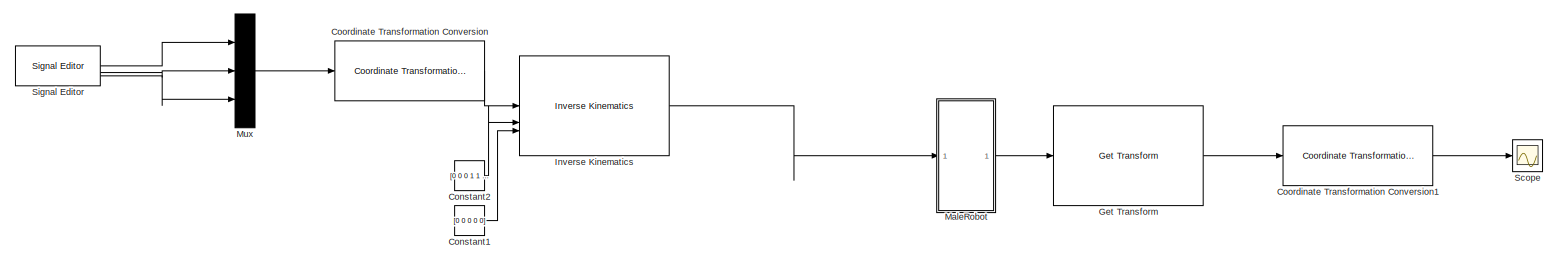
[diagram: root canvas - part 1/1, most of the canvas]
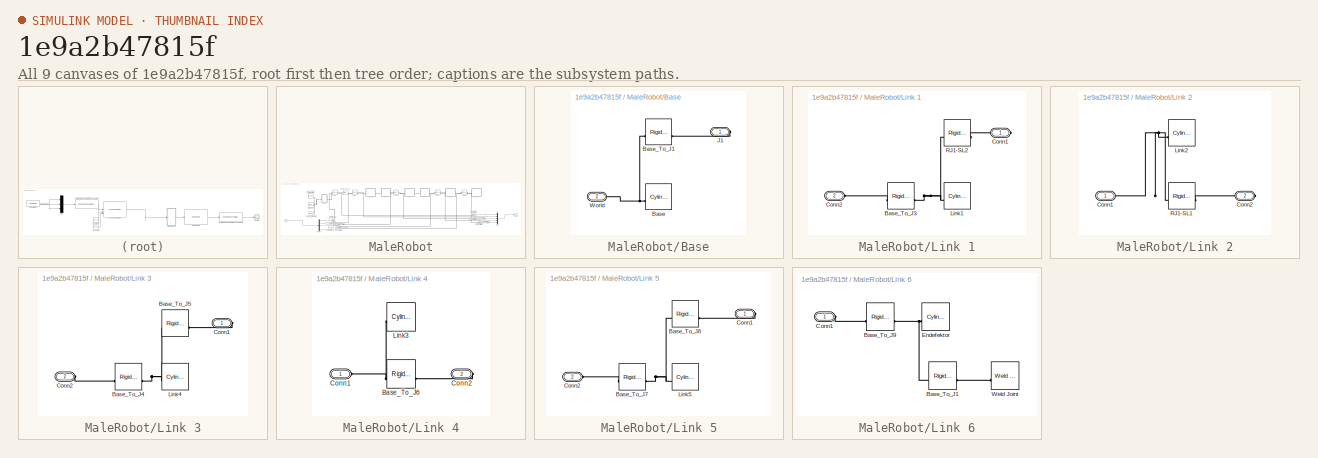
[diagram: thumbnail index - all 9 canvases of the model, root first then tree order]
MODEL slx_1e9a2b47815f
KIND model
CONFIG AbsTol = auto
CONFIG EnableMultiTasking = off
CONFIG FixedStep = auto
CONFIG MaxStep = auto
CONFIG MinStep = auto
CONFIG RelTol = 1e-3
CONFIG SampleTimeConstraint = Unconstrained
CONFIG SolverName = VariableStepAuto
CONFIG StartTime = 0.0
CONFIG StopTime = 12.0
BLOCK [Constant] Constant1
  Value = [0 0 0 0 0]
BLOCK [Constant] Constant2
  Value = [0 0 0 1 1 1]
BLOCK [Reference] Coordinate Transformation Conversion  REF=robotcorelib/Coordinate Transformation Conversion
  LibrarySourceBlock = navlib/Utilities/Coordinate Transformation Conversion
  SourceBlock = robotcorelib/Coordinate Transformation Conversion
  SourceType = robotics.slcore.internal.block.CoordinateTransformationConversion
BLOCK [Reference] Coordinate Transformation Conversion1  REF=robotcorelib/Coordinate Transformation Conversion
  SourceBlock = robotcorelib/Coordinate Transformation Conversion
  SourceType = robotics.slcore.internal.block.CoordinateTransformationConversion
BLOCK [Reference] Get Transform  REF=robotmaniplib/Get Transform
  SourceBlock = robotmaniplib/Get Transform
  SourceType = Get Transform
BLOCK [Reference] Inverse Kinematics  REF=robotmaniplib/Inverse Kinematics
  SourceBlock = robotmaniplib/Inverse Kinematics
  SourceType = Inverse Kinematics
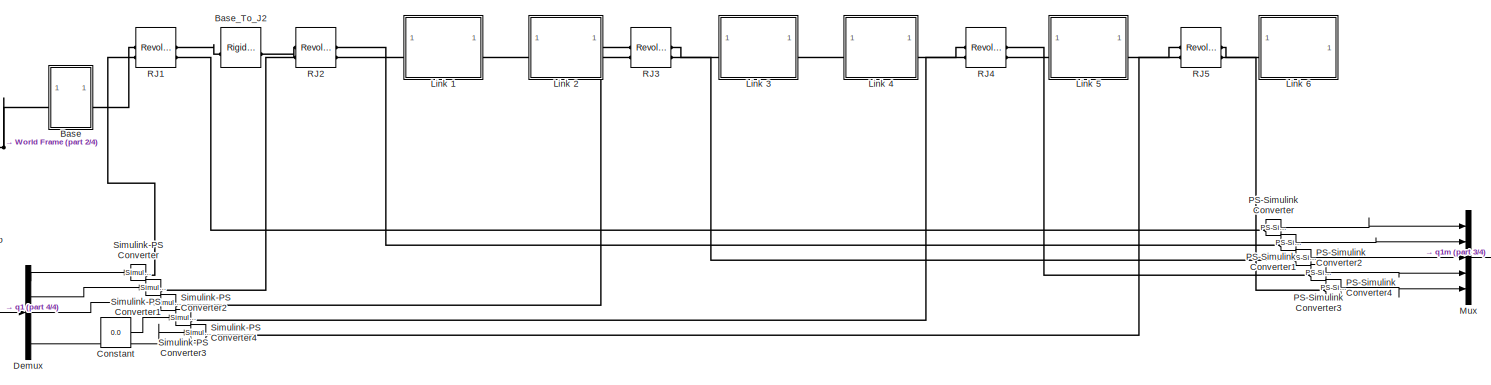
[diagram: MaleRobot - part 1/4, most of the canvas]
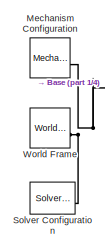
[diagram: MaleRobot - part 2/4, middle left region]
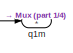
[diagram: MaleRobot - part 3/4, middle right region]
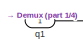
[diagram: MaleRobot - part 4/4, bottom left region]
BLOCK [SubSystem] MaleRobot
BLOCK [SubSystem] MaleRobot/Base
BLOCK [Reference] MaleRobot/Base/Base  REF=sm_lib/Body Elements/Cylindrical Solid
  NameLocation = top
  SourceBlock = sm_lib/Body Elements/Cylindrical Solid
  SourceType = Cylindrical Solid
BLOCK [Reference] MaleRobot/Base/Base_To_J1  REF=sm_lib/Frames and
Transforms/Rigid
Transform
  SourceBlock = sm_lib/Frames and\nTransforms/Rigid\nTransform
  SourceType = Rigid\nTransform
BLOCK [PMIOPort] MaleRobot/Base/J1
  Side = Right
BLOCK [PMIOPort] MaleRobot/Base/World
  Port = 2
  Side = Left
BLOCK [Reference] MaleRobot/Base_To_J2  REF=sm_lib/Frames and
Transforms/Rigid
Transform
  SourceBlock = sm_lib/Frames and\nTransforms/Rigid\nTransform
  SourceType = Rigid\nTransform
BLOCK [Constant] MaleRobot/Constant
  Value = 0.0
BLOCK [Demux] MaleRobot/Demux
  Outputs = 5
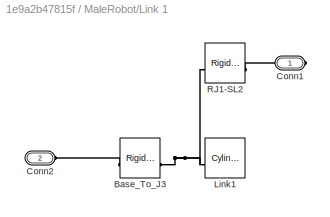
BLOCK [SubSystem] MaleRobot/Link 1
BLOCK [Reference] MaleRobot/Link 1/Base_To_J3  REF=sm_lib/Frames and
Transforms/Rigid
Transform
  SourceBlock = sm_lib/Frames and\nTransforms/Rigid\nTransform
  SourceType = Rigid\nTransform
BLOCK [PMIOPort] MaleRobot/Link 1/Conn1
  Side = Right
BLOCK [PMIOPort] MaleRobot/Link 1/Conn2
  Port = 2
  Side = Left
BLOCK [Reference] MaleRobot/Link 1/Link1  REF=sm_lib/Body Elements/Cylindrical Solid
  NameLocation = top
  SourceBlock = sm_lib/Body Elements/Cylindrical Solid
  SourceType = Cylindrical Solid
BLOCK [Reference] MaleRobot/Link 1/RJ1-SL2  REF=sm_lib/Frames and
Transforms/Rigid
Transform
  SourceBlock = sm_lib/Frames and\nTransforms/Rigid\nTransform
  SourceType = Rigid\nTransform
BLOCK [SubSystem] MaleRobot/Link 2
BLOCK [PMIOPort] MaleRobot/Link 2/Conn1
  Side = Left
BLOCK [PMIOPort] MaleRobot/Link 2/Conn2
  Port = 2
  Side = Right
BLOCK [Reference] MaleRobot/Link 2/Link2  REF=sm_lib/Body Elements/Cylindrical Solid
  NameLocation = top
  SourceBlock = sm_lib/Body Elements/Cylindrical Solid
  SourceType = Cylindrical Solid
BLOCK [Reference] MaleRobot/Link 2/RJ1-SL1  REF=sm_lib/Frames and
Transforms/Rigid
Transform
  SourceBlock = sm_lib/Frames and\nTransforms/Rigid\nTransform
  SourceType = Rigid\nTransform
BLOCK [SubSystem] MaleRobot/Link 3
BLOCK [Reference] MaleRobot/Link 3/Base_To_J4  REF=sm_lib/Frames and
Transforms/Rigid
Transform
  SourceBlock = sm_lib/Frames and\nTransforms/Rigid\nTransform
  SourceType = Rigid\nTransform
BLOCK [Reference] MaleRobot/Link 3/Base_To_J5  REF=sm_lib/Frames and
Transforms/Rigid
Transform
  SourceBlock = sm_lib/Frames and\nTransforms/Rigid\nTransform
  SourceType = Rigid\nTransform
BLOCK [PMIOPort] MaleRobot/Link 3/Conn1
  Side = Right
BLOCK [PMIOPort] MaleRobot/Link 3/Conn2
  Port = 2
  Side = Left
BLOCK [Reference] MaleRobot/Link 3/Link4  REF=sm_lib/Body Elements/Cylindrical Solid
  NameLocation = top
  SourceBlock = sm_lib/Body Elements/Cylindrical Solid
  SourceType = Cylindrical Solid
BLOCK [SubSystem] MaleRobot/Link 4
BLOCK [Reference] MaleRobot/Link 4/Base_To_J6  REF=sm_lib/Frames and
Transforms/Rigid
Transform
  SourceBlock = sm_lib/Frames and\nTransforms/Rigid\nTransform
  SourceType = Rigid\nTransform
BLOCK [PMIOPort] MaleRobot/Link 4/Conn1
  Side = Left
BLOCK [PMIOPort] MaleRobot/Link 4/Conn2
  Port = 2
  Side = Right
BLOCK [Reference] MaleRobot/Link 4/Link3  REF=sm_lib/Body Elements/Cylindrical Solid
  NameLocation = top
  SourceBlock = sm_lib/Body Elements/Cylindrical Solid
  SourceType = Cylindrical Solid
BLOCK [SubSystem] MaleRobot/Link 5
BLOCK [Reference] MaleRobot/Link 5/Base_To_J7  REF=sm_lib/Frames and
Transforms/Rigid
Transform
  SourceBlock = sm_lib/Frames and\nTransforms/Rigid\nTransform
  SourceType = Rigid\nTransform
BLOCK [Reference] MaleRobot/Link 5/Base_To_J8  REF=sm_lib/Frames and
Transforms/Rigid
Transform
  SourceBlock = sm_lib/Frames and\nTransforms/Rigid\nTransform
  SourceType = Rigid\nTransform
BLOCK [PMIOPort] MaleRobot/Link 5/Conn1
  Side = Right
BLOCK [PMIOPort] MaleRobot/Link 5/Conn2
  Port = 2
  Side = Left
BLOCK [Reference] MaleRobot/Link 5/Link5  REF=sm_lib/Body Elements/Cylindrical Solid
  NameLocation = top
  SourceBlock = sm_lib/Body Elements/Cylindrical Solid
  SourceType = Cylindrical Solid
BLOCK [SubSystem] MaleRobot/Link 6
BLOCK [Reference] MaleRobot/Link 6/Base_To_J1  REF=sm_lib/Frames and
Transforms/Rigid
Transform
  SourceBlock = sm_lib/Frames and\nTransforms/Rigid\nTransform
  SourceType = Rigid\nTransform
BLOCK [Reference] MaleRobot/Link 6/Base_To_J9  REF=sm_lib/Frames and
Transforms/Rigid
Transform
  SourceBlock = sm_lib/Frames and\nTransforms/Rigid\nTransform
  SourceType = Rigid\nTransform
BLOCK [PMIOPort] MaleRobot/Link 6/Conn1
  Side = Left
BLOCK [Reference] MaleRobot/Link 6/Endefektor  REF=sm_lib/Body Elements/Cylindrical Solid
  NameLocation = top
  SourceBlock = sm_lib/Body Elements/Cylindrical Solid
  SourceType = Cylindrical Solid
BLOCK [Reference] MaleRobot/Link 6/Weld Joint  REF=sm_lib/Joints/Weld Joint
  SourceBlock = sm_lib/Joints/Weld Joint
  SourceType = Weld Joint
BLOCK [Reference] MaleRobot/Mechanism Configuration  REF=sm_lib/Utilities/Mechanism
Configuration
  SourceBlock = sm_lib/Utilities/Mechanism\nConfiguration
  SourceType = Mechanism\nConfiguration
BLOCK [Mux] MaleRobot/Mux
  DisplayOption = bar
  Inputs = 5
BLOCK [Reference] MaleRobot/PS-Simulink Converter  REF=nesl_utility/PS-Simulink
Converter
  SourceBlock = nesl_utility/PS-Simulink\nConverter
  SourceType = PS-Simulink\nConverter
BLOCK [Reference] MaleRobot/PS-Simulink Converter1  REF=nesl_utility/PS-Simulink
Converter
  SourceBlock = nesl_utility/PS-Simulink\nConverter
  SourceType = PS-Simulink\nConverter
BLOCK [Reference] MaleRobot/PS-Simulink Converter2  REF=nesl_utility/PS-Simulink
Converter
  SourceBlock = nesl_utility/PS-Simulink\nConverter
  SourceType = PS-Simulink\nConverter
BLOCK [Reference] MaleRobot/PS-Simulink Converter3  REF=nesl_utility/PS-Simulink
Converter
  SourceBlock = nesl_utility/PS-Simulink\nConverter
  SourceType = PS-Simulink\nConverter
BLOCK [Reference] MaleRobot/PS-Simulink Converter4  REF=nesl_utility/PS-Simulink
Converter
  SourceBlock = nesl_utility/PS-Simulink\nConverter
  SourceType = PS-Simulink\nConverter
BLOCK [Reference] MaleRobot/RJ1  REF=sm_lib/Joints/Revolute Joint
  SourceBlock = sm_lib/Joints/Revolute Joint
  SourceType = Revolute Joint
BLOCK [Reference] MaleRobot/RJ2  REF=sm_lib/Joints/Revolute Joint
  SourceBlock = sm_lib/Joints/Revolute Joint
  SourceType = Revolute Joint
BLOCK [Reference] MaleRobot/RJ3  REF=sm_lib/Joints/Revolute Joint
  SourceBlock = sm_lib/Joints/Revolute Joint
  SourceType = Revolute Joint
BLOCK [Reference] MaleRobot/RJ4  REF=sm_lib/Joints/Revolute Joint
  SourceBlock = sm_lib/Joints/Revolute Joint
  SourceType = Revolute Joint
BLOCK [Reference] MaleRobot/RJ5  REF=sm_lib/Joints/Revolute Joint
  SourceBlock = sm_lib/Joints/Revolute Joint
  SourceType = Revolute Joint
BLOCK [Reference] MaleRobot/Simulink-PS Converter  REF=nesl_utility/Simulink-PS
Converter
  SourceBlock = nesl_utility/Simulink-PS\nConverter
  SourceType = Simulink-PS\nConverter
BLOCK [Reference] MaleRobot/Simulink-PS Converter1  REF=nesl_utility/Simulink-PS
Converter
  SourceBlock = nesl_utility/Simulink-PS\nConverter
  SourceType = Simulink-PS\nConverter
BLOCK [Reference] MaleRobot/Simulink-PS Converter2  REF=nesl_utility/Simulink-PS
Converter
  SourceBlock = nesl_utility/Simulink-PS\nConverter
  SourceType = Simulink-PS\nConverter
BLOCK [Reference] MaleRobot/Simulink-PS Converter3  REF=nesl_utility/Simulink-PS
Converter
  SourceBlock = nesl_utility/Simulink-PS\nConverter
  SourceType = Simulink-PS\nConverter
BLOCK [Reference] MaleRobot/Simulink-PS Converter4  REF=nesl_utility/Simulink-PS
Converter
  SourceBlock = nesl_utility/Simulink-PS\nConverter
  SourceType = Simulink-PS\nConverter
BLOCK [Reference] MaleRobot/Solver Configuration  REF=nesl_utility/Solver
Configuration
  SourceBlock = nesl_utility/Solver\nConfiguration
  SourceType = Solver\nConfiguration
BLOCK [Reference] MaleRobot/World Frame  REF=sm_lib/Frames and
Transforms/World Frame
  SourceBlock = sm_lib/Frames and\nTransforms/World Frame
  SourceType = World Frame
BLOCK [Inport] MaleRobot/q1
BLOCK [Outport] MaleRobot/q1m
BLOCK [Mux] Mux
  DisplayOption = bar
  Inputs = 3
BLOCK [Scope] Scope
  Floating = off
  NumInputPorts = 1
  ScopeSpecificationString = Simulink.scopes.TimeScopeBlockCfg('CurrentConfiguration', extmgr.ConfigurationSet(extmgr.Configuration('Core','General UI',true),extmgr.Configuration('Core','Source UI',true),extmgr.Configuration('Sources','WiredSimulink',true),extmgr.Configuration('Visuals','Time Domain',true,'SerializedDisplays',{struct('MinYLimReal','-0.12812','MaxYLimReal','1.15312','YLabelReal','','MinYLimMag','0.00000','MaxY...<+2151ch>
BLOCK [Reference] Signal Editor  REF=SignalEditorBlockLib/Signal Editor
  LibrarySourceBlock = simulink/Sources/Signal Editor
  SourceBlock = SignalEditorBlockLib/Signal Editor
  SourceType = SignalEditor
  UserDataPersistent = on
LINE Constant1:1 -> Inverse Kinematics:3
LINE Constant2:1 -> Inverse Kinematics:2
LINE Coordinate Transformation Conversion1:1 -> Scope:1
LINE Coordinate Transformation Conversion:1 -> Inverse Kinematics:1
LINE Get Transform:1 -> Coordinate Transformation Conversion1:1
LINE Inverse Kinematics:1 -> MaleRobot:1
LINE MaleRobot/Constant:1 -> MaleRobot/Simulink-PS Converter3:1
LINE MaleRobot/Demux:1 -> MaleRobot/Simulink-PS Converter:1
LINE MaleRobot/Demux:2 -> MaleRobot/Simulink-PS Converter1:1
LINE MaleRobot/Demux:3 -> MaleRobot/Simulink-PS Converter2:1
LINE MaleRobot/Demux:5 -> MaleRobot/Simulink-PS Converter4:1
LINE MaleRobot/Mux:1 -> MaleRobot/q1m:1
LINE MaleRobot/PS-Simulink Converter1:1 -> MaleRobot/Mux:2
LINE MaleRobot/PS-Simulink Converter2:1 -> MaleRobot/Mux:3
LINE MaleRobot/PS-Simulink Converter3:1 -> MaleRobot/Mux:4
LINE MaleRobot/PS-Simulink Converter4:1 -> MaleRobot/Mux:5
LINE MaleRobot/PS-Simulink Converter:1 -> MaleRobot/Mux:1
LINE MaleRobot/q1:1 -> MaleRobot/Demux:1
LINE MaleRobot:1 -> Get Transform:1
LINE Mux:1 -> Coordinate Transformation Conversion:1
LINE Signal Editor:1 -> Mux:1
LINE Signal Editor:2 -> Mux:2
LINE Signal Editor:3 -> Mux:3
PNET net1: MaleRobot/Base/Base:RConn1 -- MaleRobot/Base/Base_To_J1:LConn1 -- MaleRobot/Base/World:RConn1
PLINE MaleRobot/Base/Base_To_J1:RConn1 -- MaleRobot/Base/J1:RConn1
PNET net2: MaleRobot/Base:LConn1 -- MaleRobot/Mechanism Configuration:RConn1 -- MaleRobot/Solver Configuration:RConn1 -- MaleRobot/World Frame:RConn1
PLINE MaleRobot/Base:RConn1 -- MaleRobot/RJ1:LConn1
PLINE MaleRobot/Base_To_J2:LConn1 -- MaleRobot/RJ1:RConn1
PLINE MaleRobot/Base_To_J2:RConn1 -- MaleRobot/RJ2:LConn1
PLINE MaleRobot/Link 1/Base_To_J3:LConn1 -- MaleRobot/Link 1/Conn2:RConn1
PNET net3: MaleRobot/Link 1/Base_To_J3:RConn1 -- MaleRobot/Link 1/Link1:RConn1 -- MaleRobot/Link 1/RJ1-SL2:LConn1
PLINE MaleRobot/Link 1/Conn1:RConn1 -- MaleRobot/Link 1/RJ1-SL2:RConn1
PLINE MaleRobot/Link 1:LConn1 -- MaleRobot/RJ2:RConn1
PLINE MaleRobot/Link 1:RConn1 -- MaleRobot/Link 2:LConn1
PNET net4: MaleRobot/Link 2/Conn1:RConn1 -- MaleRobot/Link 2/Link2:RConn1 -- MaleRobot/Link 2/RJ1-SL1:LConn1
PLINE MaleRobot/Link 2/Conn2:RConn1 -- MaleRobot/Link 2/RJ1-SL1:RConn1
PLINE MaleRobot/Link 2:RConn1 -- MaleRobot/RJ3:LConn1
PLINE MaleRobot/Link 3/Base_To_J4:LConn1 -- MaleRobot/Link 3/Conn2:RConn1
PNET net5: MaleRobot/Link 3/Base_To_J4:RConn1 -- MaleRobot/Link 3/Base_To_J5:LConn1 -- MaleRobot/Link 3/Link4:RConn1
PLINE MaleRobot/Link 3/Base_To_J5:RConn1 -- MaleRobot/Link 3/Conn1:RConn1
PLINE MaleRobot/Link 3:LConn1 -- MaleRobot/RJ3:RConn1
PLINE MaleRobot/Link 3:RConn1 -- MaleRobot/Link 4:LConn1
PNET net6: MaleRobot/Link 4/Base_To_J6:LConn1 -- MaleRobot/Link 4/Conn1:RConn1 -- MaleRobot/Link 4/Link3:RConn1
PLINE MaleRobot/Link 4/Base_To_J6:RConn1 -- MaleRobot/Link 4/Conn2:RConn1
PLINE MaleRobot/Link 4:RConn1 -- MaleRobot/RJ4:LConn1
PLINE MaleRobot/Link 5/Base_To_J7:LConn1 -- MaleRobot/Link 5/Conn2:RConn1
PNET net7: MaleRobot/Link 5/Base_To_J7:RConn1 -- MaleRobot/Link 5/Base_To_J8:LConn1 -- MaleRobot/Link 5/Link5:RConn1
PLINE MaleRobot/Link 5/Base_To_J8:RConn1 -- MaleRobot/Link 5/Conn1:RConn1
PLINE MaleRobot/Link 5:LConn1 -- MaleRobot/RJ4:RConn1
PLINE MaleRobot/Link 5:RConn1 -- MaleRobot/RJ5:LConn1
PNET net8: MaleRobot/Link 6/Base_To_J1:LConn1 -- MaleRobot/Link 6/Base_To_J9:RConn1 -- MaleRobot/Link 6/Endefektor:RConn1
PLINE MaleRobot/Link 6/Base_To_J1:RConn1 -- MaleRobot/Link 6/Weld Joint:LConn1
PLINE MaleRobot/Link 6/Base_To_J9:LConn1 -- MaleRobot/Link 6/Conn1:RConn1
PLINE MaleRobot/Link 6:LConn1 -- MaleRobot/RJ5:RConn1
PLINE MaleRobot/PS-Simulink Converter1:LConn1 -- MaleRobot/RJ2:RConn2
PLINE MaleRobot/PS-Simulink Converter2:LConn1 -- MaleRobot/RJ3:RConn2
PLINE MaleRobot/PS-Simulink Converter3:LConn1 -- MaleRobot/RJ4:RConn2
PLINE MaleRobot/PS-Simulink Converter4:LConn1 -- MaleRobot/RJ5:RConn2
PLINE MaleRobot/PS-Simulink Converter:LConn1 -- MaleRobot/RJ1:RConn2
PLINE MaleRobot/RJ1:LConn2 -- MaleRobot/Simulink-PS Converter:RConn1
PLINE MaleRobot/RJ2:LConn2 -- MaleRobot/Simulink-PS Converter1:RConn1
PLINE MaleRobot/RJ3:LConn2 -- MaleRobot/Simulink-PS Converter2:RConn1
PLINE MaleRobot/RJ4:LConn2 -- MaleRobot/Simulink-PS Converter3:RConn1
PLINE MaleRobot/RJ5:LConn2 -- MaleRobot/Simulink-PS Converter4:RConn1
note: PNET lines group multi-terminal physical nets as a canonical sorted terminal list (undirected conserving connections); 2-terminal nets keep the pairwise PLINE form
